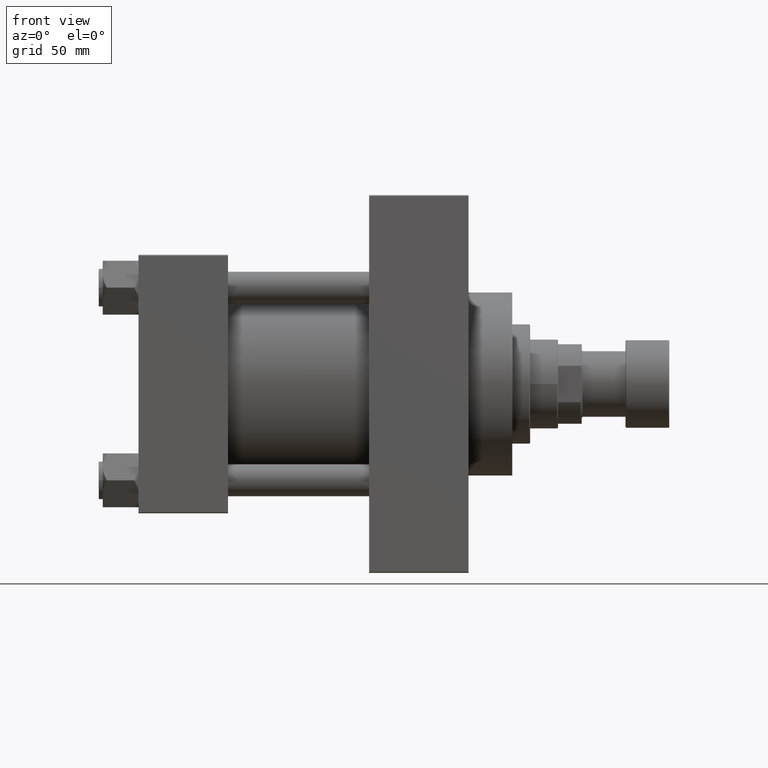
[diagram: clean part render]
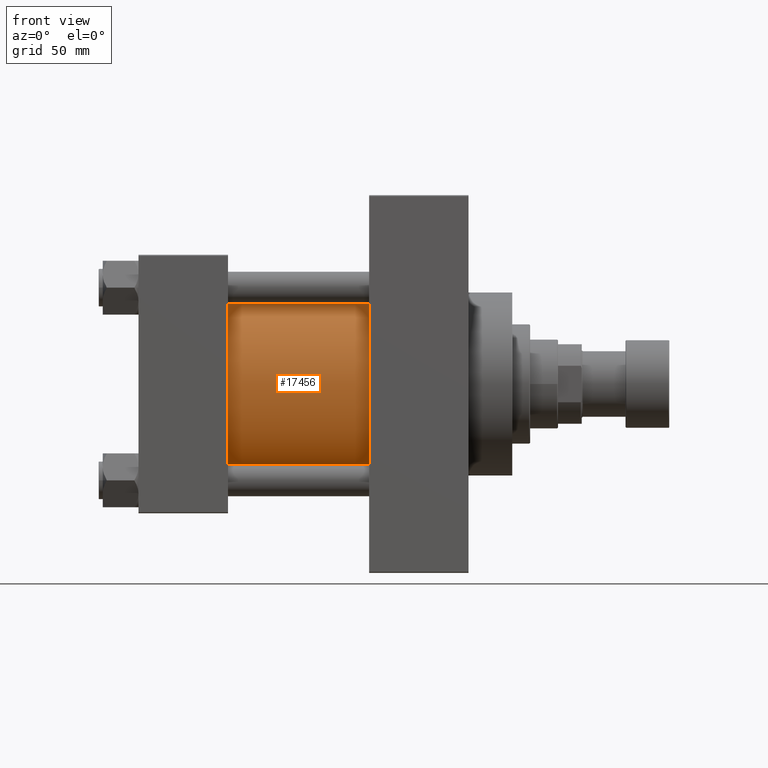
[diagram: same view with one face highlighted and labeled with its STEP entity id]
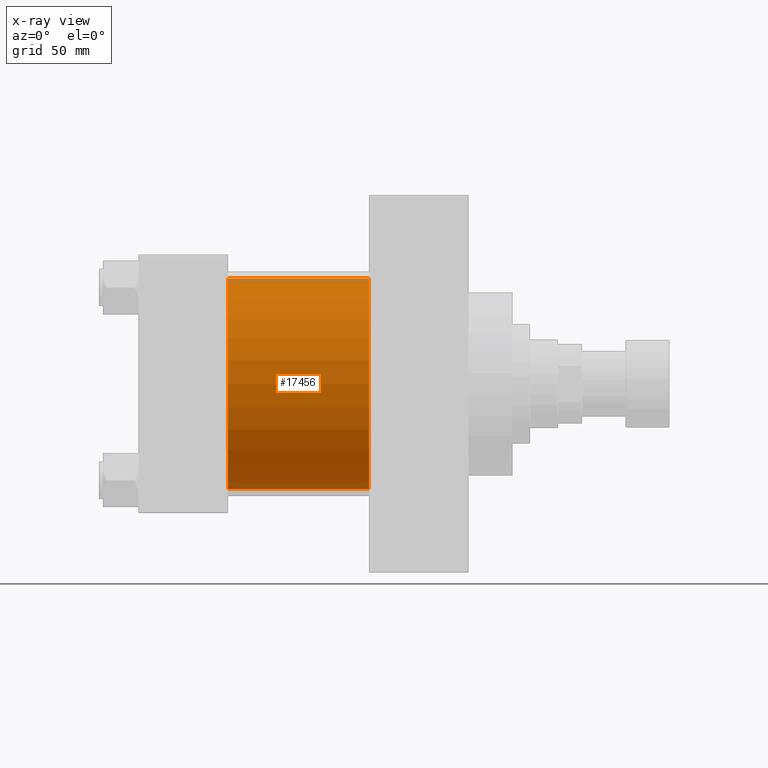
[diagram: x-ray of the same camera — body ghosted, the highlighted face saturated]
A machine part, front view. The second image highlights one B-rep face of the part: STEP entity #17456.
The next image is the same camera in x-ray: the body ghosted, the highlighted face saturated — about 5% of this face is hidden behind the body in this view.
In plain terms, the highlighted cylindrical surface (partial cylindrical patch) has radius 53 mm, axis along (-1, -0, -0).
Its self-contained STEP definition (entity closure, byte-faithful):
#1197 = CARTESIAN_POINT ( 'NONE',  ( 115.9999999999999858, -2.602085213965210642E-15, 0.000000000000000000 ) ) ;
#3430 = DIRECTION ( 'NONE',  ( 1.000000000000000000, -0.000000000000000000, 0.000000000000000000 ) ) ;
#4749 = CARTESIAN_POINT ( 'NONE',  ( 45.00000000000000000, 3.888542821515762466E-15, -53.00000000000000711 ) ) ;
#5098 = LINE ( 'NONE', #16090, #14051 ) ;
#7748 = CARTESIAN_POINT ( 'NONE',  ( 115.9999999999999858, 3.888542821515762466E-15, -53.00000000000000711 ) ) ;
#8654 = AXIS2_PLACEMENT_3D ( 'NONE', #20295, #13447, #16638 ) ;
#8876 = VERTEX_POINT ( 'NONE', #4749 ) ;
#9251 = CYLINDRICAL_SURFACE ( 'NONE', #33893, 53.00000000000000711 ) ;
#9367 = CARTESIAN_POINT ( 'NONE',  ( 45.00000000000000000, -2.602085213965210642E-15, 53.00000000000000711 ) ) ;
#10478 = VERTEX_POINT ( 'NONE', #19702 ) ;
#10522 = CIRCLE ( 'NONE', #37837, 53.00000000000000711 ) ;
#11150 = EDGE_CURVE ( 'NONE', #27570, #10478, #32782, .T. ) ;
#11650 = LINE ( 'NONE', #7748, #36038 ) ;
#13447 = DIRECTION ( 'NONE',  ( 1.000000000000000000, 0.000000000000000000, 0.000000000000000000 ) ) ;
#13946 = DIRECTION ( 'NONE',  ( 0.000000000000000000, 0.000000000000000000, 1.000000000000000000 ) ) ;
#14051 = VECTOR ( 'NONE', #26843, 1000.000000000000000 ) ;
#15823 = DIRECTION ( 'NONE',  ( -1.000000000000000000, -0.000000000000000000, -0.000000000000000000 ) ) ;
#16090 = CARTESIAN_POINT ( 'NONE',  ( 115.9999999999999858, -2.602085213965210642E-15, 53.00000000000000711 ) ) ;
#16102 = DIRECTION ( 'NONE',  ( 0.000000000000000000, 0.000000000000000000, 1.000000000000000000 ) ) ;
#16638 = DIRECTION ( 'NONE',  ( 0.000000000000000000, 0.000000000000000000, -1.000000000000000000 ) ) ;
#17456 = ADVANCED_FACE ( 'NONE', ( #23675 ), #9251, .T. ) ;
#19702 = CARTESIAN_POINT ( 'NONE',  ( 115.9999999999999858, 3.888542821515762466E-15, -53.00000000000000711 ) ) ;
#20295 = CARTESIAN_POINT ( 'NONE',  ( 115.9999999999999858, -2.602085213965210642E-15, 0.000000000000000000 ) ) ;
#20788 = EDGE_LOOP ( 'NONE', ( #23007, #33395, #35478, #21867 ) ) ;
#21867 = ORIENTED_EDGE ( 'NONE', *, *, #43541, .T. ) ;
#23007 = ORIENTED_EDGE ( 'NONE', *, *, #37772, .F. ) ;
#23675 = FACE_OUTER_BOUND ( 'NONE', #20788, .T. ) ;
#24709 = CARTESIAN_POINT ( 'NONE',  ( 45.00000000000000000, -2.602085213965210642E-15, 0.000000000000000000 ) ) ;
#26843 = DIRECTION ( 'NONE',  ( -1.000000000000000000, -0.000000000000000000, -0.000000000000000000 ) ) ;
#27570 = VERTEX_POINT ( 'NONE', #45938 ) ;
#31499 = EDGE_CURVE ( 'NONE', #27570, #38395, #5098, .T. ) ;
#32782 = CIRCLE ( 'NONE', #8654, 53.00000000000000711 ) ;
#33395 = ORIENTED_EDGE ( 'NONE', *, *, #11150, .F. ) ;
#33893 = AXIS2_PLACEMENT_3D ( 'NONE', #1197, #34907, #16102 ) ;
#34907 = DIRECTION ( 'NONE',  ( -1.000000000000000000, -0.000000000000000000, -0.000000000000000000 ) ) ;
#35478 = ORIENTED_EDGE ( 'NONE', *, *, #31499, .T. ) ;
#36038 = VECTOR ( 'NONE', #15823, 1000.000000000000000 ) ;
#37772 = EDGE_CURVE ( 'NONE', #10478, #8876, #11650, .T. ) ;
#37837 = AXIS2_PLACEMENT_3D ( 'NONE', #24709, #3430, #13946 ) ;
#38395 = VERTEX_POINT ( 'NONE', #9367 ) ;
#43541 = EDGE_CURVE ( 'NONE', #38395, #8876, #10522, .T. ) ;
#45938 = CARTESIAN_POINT ( 'NONE',  ( 115.9999999999999858, -2.602085213965210642E-15, 53.00000000000000711 ) ) ;